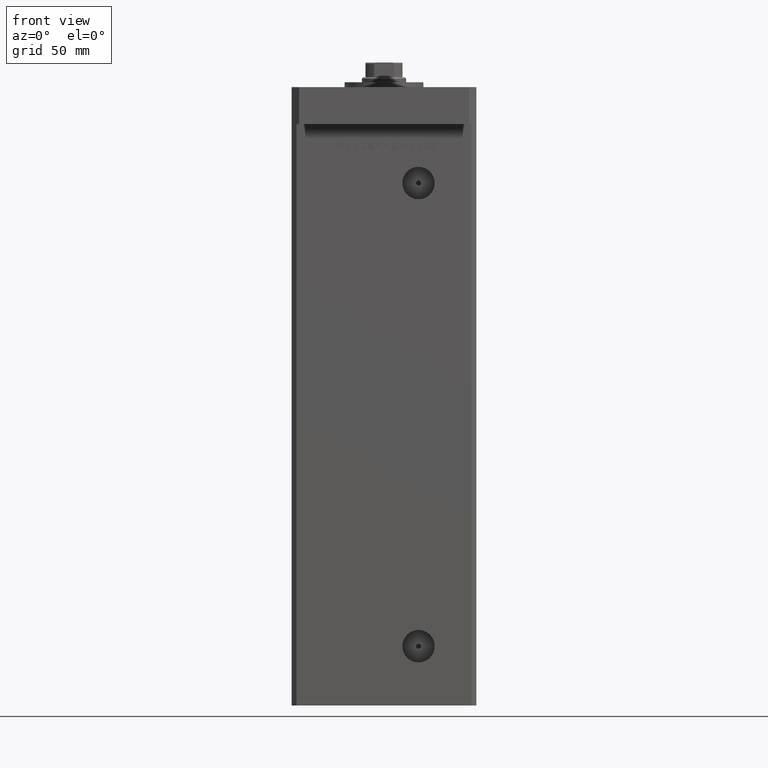
[diagram: clean part render]
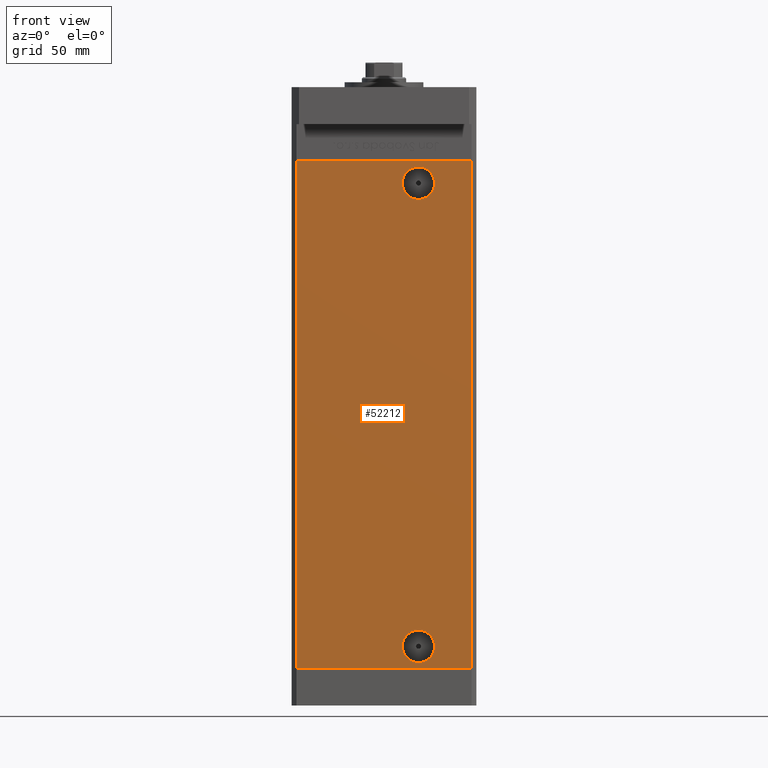
[diagram: same view with one face highlighted and labeled with its STEP entity id]
A machine part, front view. The second image highlights one B-rep face of the part: STEP entity #52212.
In plain terms, the highlighted planar face has unit normal (0, 1, 0).
Its self-contained STEP definition (entity closure, byte-faithful):
#241 = EDGE_CURVE ( 'NONE', #35417, #44906, #22339, .T. ) ;
#610 = FACE_OUTER_BOUND ( 'NONE', #39641, .T. ) ;
#1260 = CARTESIAN_POINT ( 'NONE',  ( 35.49999999999999289, -32.50000000000000000, 206.0000000000000000 ) ) ;
#3861 = AXIS2_PLACEMENT_3D ( 'NONE', #34053, #49815, #46273 ) ;
#3924 = VERTEX_POINT ( 'NONE', #10186 ) ;
#5519 = DIRECTION ( 'NONE',  ( 0.000000000000000000, 0.000000000000000000, -1.000000000000000000 ) ) ;
#6691 = CARTESIAN_POINT ( 'NONE',  ( -35.49999999999999289, -32.50000000000000000, 206.0000000000000000 ) ) ;
#6954 = AXIS2_PLACEMENT_3D ( 'NONE', #33665, #25794, #42324 ) ;
#7571 = EDGE_CURVE ( 'NONE', #22016, #35417, #9020, .T. ) ;
#8023 = ORIENTED_EDGE ( 'NONE', *, *, #18702, .T. ) ;
#9020 = LINE ( 'NONE', #30426, #26777 ) ;
#9278 = EDGE_CURVE ( 'NONE', #25668, #44906, #53010, .T. ) ;
#9703 = DIRECTION ( 'NONE',  ( -0.000000000000000000, 1.000000000000000000, -0.000000000000000000 ) ) ;
#10186 = CARTESIAN_POINT ( 'NONE',  ( 13.99999999999999112, -32.50000000000000000, 15.58000000000000718 ) ) ;
#10421 = ORIENTED_EDGE ( 'NONE', *, *, #9278, .F. ) ;
#11378 = DIRECTION ( 'NONE',  ( -0.000000000000000000, 1.000000000000000000, -0.000000000000000000 ) ) ;
#12646 = CARTESIAN_POINT ( 'NONE',  ( -35.49999999999999289, -32.50000000000000000, 206.0000000000000000 ) ) ;
#13316 = FACE_BOUND ( 'NONE', #29404, .T. ) ;
#14586 = AXIS2_PLACEMENT_3D ( 'NONE', #22308, #47000, #5519 ) ;
#14641 = CARTESIAN_POINT ( 'NONE',  ( -35.49999999999999289, -32.50000000000000000, 0.000000000000000000 ) ) ;
#15256 = CARTESIAN_POINT ( 'NONE',  ( 13.99999999999996980, -32.50000000000000000, 190.4200000000000159 ) ) ;
#15948 = CIRCLE ( 'NONE', #3861, 6.579999999999998295 ) ;
#16957 = VERTEX_POINT ( 'NONE', #15256 ) ;
#17649 = CIRCLE ( 'NONE', #47988, 6.580000000000002736 ) ;
#18034 = ORIENTED_EDGE ( 'NONE', *, *, #25379, .T. ) ;
#18272 = CARTESIAN_POINT ( 'NONE',  ( -35.49999999999999289, -32.50000000000000000, 0.000000000000000000 ) ) ;
#18702 = EDGE_CURVE ( 'NONE', #16957, #36055, #38382, .T. ) ;
#19909 = VERTEX_POINT ( 'NONE', #30799 ) ;
#20793 = ORIENTED_EDGE ( 'NONE', *, *, #33948, .F. ) ;
#22016 = VERTEX_POINT ( 'NONE', #12646 ) ;
#22308 = CARTESIAN_POINT ( 'NONE',  ( 13.99999999999999112, -32.50000000000000000, 9.000000000000007105 ) ) ;
#22339 = LINE ( 'NONE', #18272, #46050 ) ;
#22996 = ORIENTED_EDGE ( 'NONE', *, *, #241, .T. ) ;
#25340 = CARTESIAN_POINT ( 'NONE',  ( 35.49999999999999289, -32.50000000000000000, 0.000000000000000000 ) ) ;
#25379 = EDGE_CURVE ( 'NONE', #36055, #16957, #17649, .T. ) ;
#25455 = CARTESIAN_POINT ( 'NONE',  ( 13.99999999999996980, -32.50000000000000000, 197.0000000000000000 ) ) ;
#25624 = EDGE_CURVE ( 'NONE', #3924, #19909, #15948, .T. ) ;
#25668 = VERTEX_POINT ( 'NONE', #1260 ) ;
#25794 = DIRECTION ( 'NONE',  ( 0.000000000000000000, 1.000000000000000000, 0.000000000000000000 ) ) ;
#25981 = DIRECTION ( 'NONE',  ( 0.000000000000000000, 0.000000000000000000, -1.000000000000000000 ) ) ;
#26777 = VECTOR ( 'NONE', #50770, 1000.000000000000000 ) ;
#27514 = DIRECTION ( 'NONE',  ( -0.000000000000000000, -0.000000000000000000, -1.000000000000000000 ) ) ;
#29404 = EDGE_LOOP ( 'NONE', ( #51790, #42290 ) ) ;
#30426 = CARTESIAN_POINT ( 'NONE',  ( -35.49999999999999289, -32.50000000000000000, 206.0000000000000000 ) ) ;
#30799 = CARTESIAN_POINT ( 'NONE',  ( 13.99999999999999112, -32.50000000000000000, 2.420000000000009699 ) ) ;
#31053 = CIRCLE ( 'NONE', #14586, 6.579999999999998295 ) ;
#31620 = DIRECTION ( 'NONE',  ( 1.000000000000000000, 0.000000000000000000, 0.000000000000000000 ) ) ;
#33159 = AXIS2_PLACEMENT_3D ( 'NONE', #40386, #11378, #44180 ) ;
#33494 = VECTOR ( 'NONE', #31620, 1000.000000000000000 ) ;
#33665 = CARTESIAN_POINT ( 'NONE',  ( -35.49999999999999289, -32.50000000000000000, 206.0000000000000000 ) ) ;
#33948 = EDGE_CURVE ( 'NONE', #22016, #25668, #36212, .T. ) ;
#34053 = CARTESIAN_POINT ( 'NONE',  ( 13.99999999999999112, -32.50000000000000000, 9.000000000000007105 ) ) ;
#34183 = PLANE ( 'NONE',  #6954 ) ;
#35417 = VERTEX_POINT ( 'NONE', #14641 ) ;
#35665 = CARTESIAN_POINT ( 'NONE',  ( 13.99999999999996980, -32.50000000000000000, 203.5800000000000125 ) ) ;
#36055 = VERTEX_POINT ( 'NONE', #35665 ) ;
#36212 = LINE ( 'NONE', #6691, #33494 ) ;
#38382 = CIRCLE ( 'NONE', #33159, 6.580000000000002736 ) ;
#39616 = ORIENTED_EDGE ( 'NONE', *, *, #7571, .T. ) ;
#39641 = EDGE_LOOP ( 'NONE', ( #22996, #10421, #20793, #39616 ) ) ;
#40386 = CARTESIAN_POINT ( 'NONE',  ( 13.99999999999996980, -32.50000000000000000, 197.0000000000000000 ) ) ;
#41684 = DIRECTION ( 'NONE',  ( 1.000000000000000000, 0.000000000000000000, 0.000000000000000000 ) ) ;
#42290 = ORIENTED_EDGE ( 'NONE', *, *, #25624, .F. ) ;
#42324 = DIRECTION ( 'NONE',  ( 0.000000000000000000, -0.000000000000000000, 1.000000000000000000 ) ) ;
#44180 = DIRECTION ( 'NONE',  ( 0.000000000000000000, 0.000000000000000000, -1.000000000000000000 ) ) ;
#44906 = VERTEX_POINT ( 'NONE', #25340 ) ;
#46050 = VECTOR ( 'NONE', #41684, 1000.000000000000000 ) ;
#46273 = DIRECTION ( 'NONE',  ( 0.000000000000000000, 0.000000000000000000, -1.000000000000000000 ) ) ;
#46406 = FACE_BOUND ( 'NONE', #46555, .T. ) ;
#46555 = EDGE_LOOP ( 'NONE', ( #8023, #18034 ) ) ;
#47000 = DIRECTION ( 'NONE',  ( 0.000000000000000000, -1.000000000000000000, 0.000000000000000000 ) ) ;
#47652 = VECTOR ( 'NONE', #27514, 1000.000000000000000 ) ;
#47988 = AXIS2_PLACEMENT_3D ( 'NONE', #25455, #9703, #25981 ) ;
#49524 = EDGE_CURVE ( 'NONE', #19909, #3924, #31053, .T. ) ;
#49815 = DIRECTION ( 'NONE',  ( 0.000000000000000000, -1.000000000000000000, 0.000000000000000000 ) ) ;
#50770 = DIRECTION ( 'NONE',  ( -0.000000000000000000, -0.000000000000000000, -1.000000000000000000 ) ) ;
#51790 = ORIENTED_EDGE ( 'NONE', *, *, #49524, .F. ) ;
#51939 = CARTESIAN_POINT ( 'NONE',  ( 35.49999999999999289, -32.50000000000000000, 206.0000000000000000 ) ) ;
#52212 = ADVANCED_FACE ( 'NONE', ( #13316, #610, #46406 ), #34183, .F. ) ;
#53010 = LINE ( 'NONE', #51939, #47652 ) ;